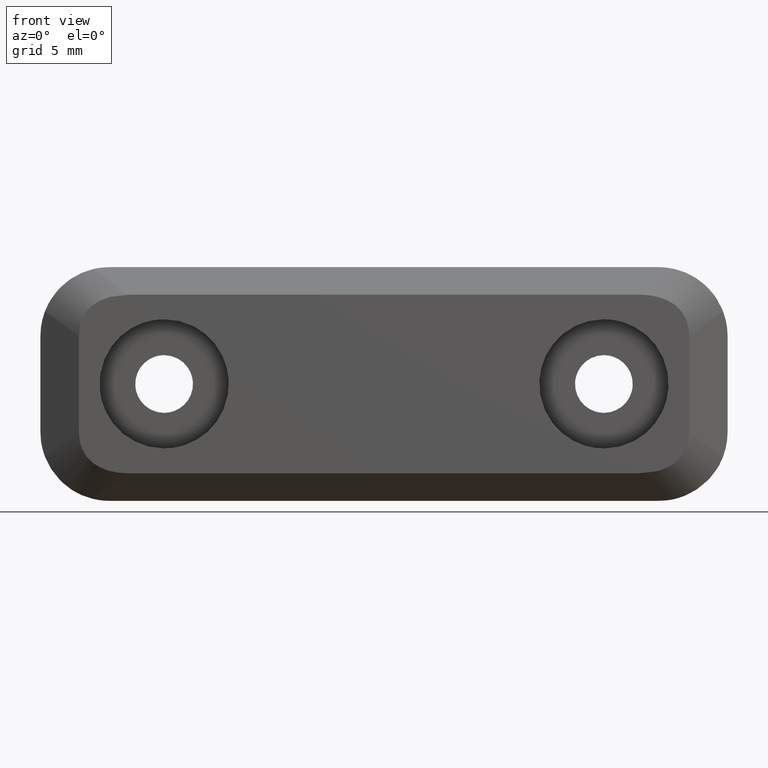
[diagram: clean part render]
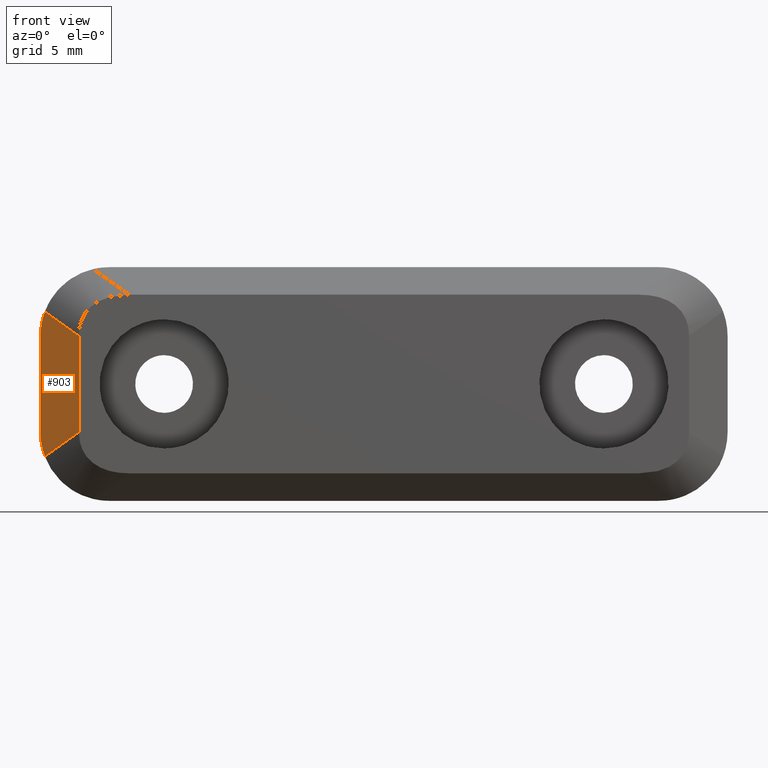
[diagram: same view with one face highlighted and labeled with its STEP entity id]
A machine part, front view. The second image highlights one B-rep face of the part: STEP entity #903.
In plain terms, the highlighted face is a freeform B-spline surface patch.
Its self-contained STEP definition (entity closure, byte-faithful):
#785=CARTESIAN_POINT('',(-22.199999999986950,-6.600000000000000,3.497599544169730));
#786=VERTEX_POINT('',#785);
#807=CARTESIAN_POINT('',(-24.677318849210799,-4.830486536268090,5.267113007901680));
#808=VERTEX_POINT('',#807);
#838=CARTESIAN_POINT('',(-22.199999999986950,-6.600000000000000,3.497599544169730));
#839=CARTESIAN_POINT('',(-24.677318849210799,-4.830486536268090,5.267113007901680));
#840=QUASI_UNIFORM_CURVE('',1,(#838,#839),.UNSPECIFIED.,.F.,.U.);
#841=EDGE_CURVE('',#786,#808,#840,.T.);
#846=CARTESIAN_POINT('',(-22.060140005415271,-6.699899996125783,-5.793297576970032));
#847=CARTESIAN_POINT('',(-25.139860069665701,-4.500099950232655,-5.793297576970032));
#848=CARTESIAN_POINT('',(-22.060140005413398,-6.699899996123157,5.793297859523471));
#849=CARTESIAN_POINT('',(-25.139860069663829,-4.500099950230031,5.793297859523471));
#850=B_SPLINE_SURFACE_WITH_KNOTS('',1,1,((#846,#848),(#847,#849)),.UNSPECIFIED.,.F.,.F.,.U.,(2,2),(2,2),(0.0,3.784679103445634),(0.0,11.586595436493500),.UNSPECIFIED.);
#851=ORIENTED_EDGE('',*,*,#841,.T.);
#852=CARTESIAN_POINT('',(-24.999999999986951,-4.600000000000000,3.500000000002510));
#853=VERTEX_POINT('',#852);
#854=CARTESIAN_POINT('',(-24.677318849210842,-4.830486536268133,5.267113007901680));
#855=CARTESIAN_POINT('',(-24.999999999986517,-4.600000000000090,4.413017869637388));
#856=CARTESIAN_POINT('',(-24.999999999986951,-4.600000000000090,3.500000000002511));
#864=(BOUNDED_CURVE()B_SPLINE_CURVE(2,(#854,#855,#856),.UNSPECIFIED.,.F.,.U.)CURVE()GEOMETRIC_REPRESENTATION_ITEM()QUASI_UNIFORM_CURVE()RATIONAL_B_SPLINE_CURVE((1.0,0.983733645313841,1.0))REPRESENTATION_ITEM(''));
#865=EDGE_CURVE('',#808,#853,#864,.T.);
#866=ORIENTED_EDGE('',*,*,#865,.T.);
#867=CARTESIAN_POINT('',(-24.999999999990301,-4.600000000000000,-3.499999999997380));
#868=VERTEX_POINT('',#867);
#869=CARTESIAN_POINT('',(-24.999999999990301,-4.600000000000000,-3.499999999997380));
#870=CARTESIAN_POINT('',(-24.999999999986951,-4.600000000000000,3.500000000002510));
#871=QUASI_UNIFORM_CURVE('',1,(#869,#870),.UNSPECIFIED.,.F.,.U.);
#872=EDGE_CURVE('',#868,#853,#871,.T.);
#873=ORIENTED_EDGE('',*,*,#872,.F.);
#874=CARTESIAN_POINT('',(-24.677318849215350,-4.830486536268450,-5.267113007898201));
#875=VERTEX_POINT('',#874);
#876=CARTESIAN_POINT('',(-24.999999999990301,-4.600000000000090,-3.499999999997380));
#877=CARTESIAN_POINT('',(-24.999999999990742,-4.600000000000090,-4.413017869632999));
#878=CARTESIAN_POINT('',(-24.677318849215379,-4.830486536268495,-5.267113007898200));
#886=(BOUNDED_CURVE()B_SPLINE_CURVE(2,(#876,#877,#878),.UNSPECIFIED.,.F.,.U.)CURVE()GEOMETRIC_REPRESENTATION_ITEM()QUASI_UNIFORM_CURVE()RATIONAL_B_SPLINE_CURVE((1.0,0.983733645313833,1.0))REPRESENTATION_ITEM(''));
#887=EDGE_CURVE('',#868,#875,#886,.T.);
#888=ORIENTED_EDGE('',*,*,#887,.T.);
#889=CARTESIAN_POINT('',(-22.199999999990251,-6.600000000000000,-3.497599544166605));
#890=VERTEX_POINT('',#889);
#891=CARTESIAN_POINT('',(-24.677318849215350,-4.830486536268450,-5.267113007898201));
#892=CARTESIAN_POINT('',(-22.199999999990251,-6.600000000000000,-3.497599544166605));
#893=QUASI_UNIFORM_CURVE('',1,(#891,#892),.UNSPECIFIED.,.F.,.U.);
#894=EDGE_CURVE('',#875,#890,#893,.T.);
#895=ORIENTED_EDGE('',*,*,#894,.T.);
#896=CARTESIAN_POINT('',(-22.199999999986950,-6.600000000000000,3.497599544169730));
#897=CARTESIAN_POINT('',(-22.199999999990251,-6.600000000000000,-3.497599544166605));
#898=QUASI_UNIFORM_CURVE('',1,(#896,#897),.UNSPECIFIED.,.F.,.U.);
#899=EDGE_CURVE('',#786,#890,#898,.T.);
#900=ORIENTED_EDGE('',*,*,#899,.F.);
#901=EDGE_LOOP('',(#851,#866,#873,#888,#895,#900));
#902=FACE_OUTER_BOUND('',#901,.T.);
#903=ADVANCED_FACE('',(#902),#850,.F.);